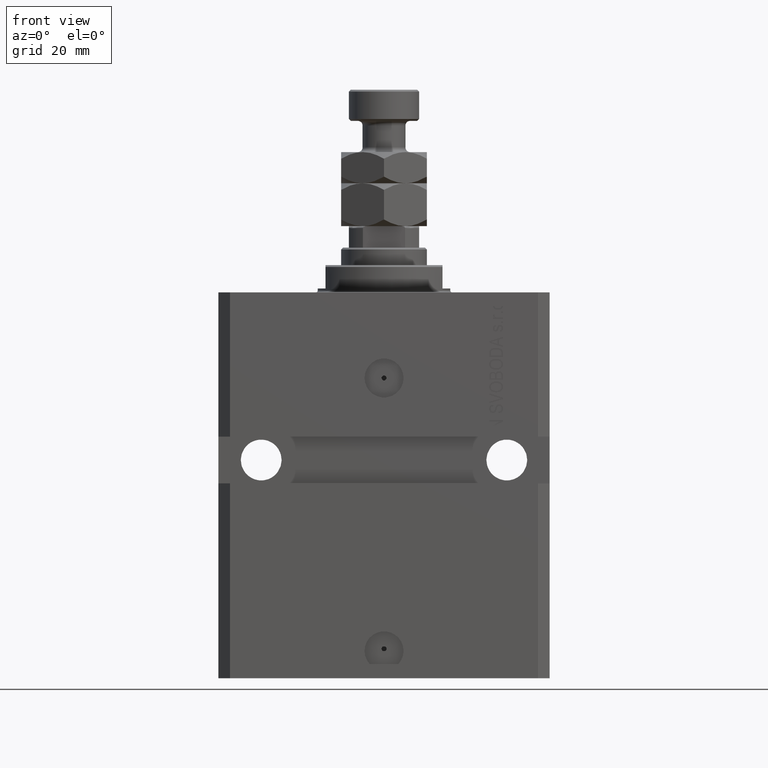
[diagram: clean part render]
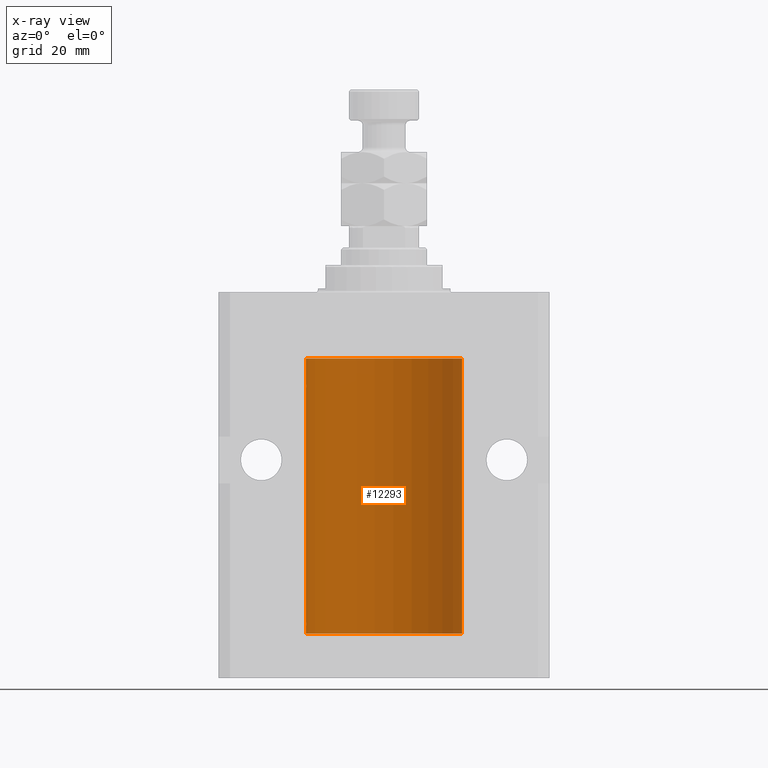
[diagram: x-ray — body ghosted, one internal face saturated and labeled with its STEP entity id]
A machine part, front view, then the same camera in x-ray: the body is ghosted and one INTERNAL B-rep face — a face not visible from any outside direction — is saturated and labeled: STEP entity #12293.
In plain terms, the highlighted cylindrical surface (partial cylindrical patch) has radius 20 mm, axis along (0, 0, 1).
Its self-contained STEP definition (entity closure, byte-faithful):
#975 = ORIENTED_EDGE ( 'NONE', *, *, #20685, .F. ) ;
#1133 = EDGE_CURVE ( 'NONE', #7173, #37258, #35256, .T. ) ;
#1388 = ORIENTED_EDGE ( 'NONE', *, *, #42144, .F. ) ;
#1446 = ORIENTED_EDGE ( 'NONE', *, *, #7345, .T. ) ;
#1989 = CIRCLE ( 'NONE', #16340, 20.00000000000000000 ) ;
#3581 = LINE ( 'NONE', #33949, #13955 ) ;
#4023 = B_SPLINE_CURVE_WITH_KNOTS ( 'NONE', 3,
 ( #15011, #40648, #14517, #41391, #6532, #29681, #14268, #21725, #36904, #10784, #29433, #14772 ),
 .UNSPECIFIED., .F., .F.,
 ( 4, 2, 2, 2, 2, 4 ),
 ( 1.567752838007446890E-18, 0.0002442693137305179934, 0.0004885386274610343605, 0.0009770772549220964765, 0.001465615882383158484, 0.001954154509844220709 ),
 .UNSPECIFIED. ) ;
#4352 = DIRECTION ( 'NONE',  ( 0.000000000000000000, 0.000000000000000000, 1.000000000000000000 ) ) ;
#5596 = CARTESIAN_POINT ( 'NONE',  ( -19.99253506710754991, 0.5587120480776751608, -24.32511620830248589 ) ) ;
#5665 = EDGE_CURVE ( 'NONE', #24873, #17473, #8256, .T. ) ;
#6084 = CARTESIAN_POINT ( 'NONE',  ( -20.00000000000010303, 3.580159278407742946E-13, -24.62500000000332889 ) ) ;
#6430 = CARTESIAN_POINT ( 'NONE',  ( 20.00000000000000000, 0.000000000000000000, -17.00000000000000000 ) ) ;
#6532 = CARTESIAN_POINT ( 'NONE',  ( -19.99638934703457238, 0.3843678041337643680, -84.50046362978100944 ) ) ;
#6729 = VECTOR ( 'NONE', #34881, 1000.000000000000000 ) ;
#7138 = LINE ( 'NONE', #45724, #48583 ) ;
#7173 = VERTEX_POINT ( 'NONE', #14865 ) ;
#7345 = EDGE_CURVE ( 'NONE', #40983, #17473, #1989, .T. ) ;
#7437 = EDGE_CURVE ( 'NONE', #7173, #40983, #3581, .T. ) ;
#7601 = CARTESIAN_POINT ( 'NONE',  ( 0.000000000000000000, 0.000000000000000000, -87.59999999999999432 ) ) ;
#7869 = CARTESIAN_POINT ( 'NONE',  ( -20.00000000000010303, 3.580159278407742946E-13, -24.62500000000332889 ) ) ;
#8256 = LINE ( 'NONE', #49110, #6729 ) ;
#9090 = CARTESIAN_POINT ( 'NONE',  ( -19.99023018003212471, 0.6250578794725500931, -24.16284809704970371 ) ) ;
#10000 = B_SPLINE_CURVE_WITH_KNOTS ( 'NONE', 3,
 ( #25021, #20791, #35717, #40208, #35959, #47920, #43695, #9090, #5596, #43940, #17062, #6084 ),
 .UNSPECIFIED., .F., .F.,
 ( 4, 2, 2, 2, 2, 4 ),
 ( 5.848927291235706941E-19, 0.0002442693137305304075, 0.0004885386274610601645, 0.0009770772549221123059, 0.001465615882383164339, 0.001954154509844215938 ),
 .UNSPECIFIED. ) ;
#10372 = DIRECTION ( 'NONE',  ( 1.000000000000000000, 0.000000000000000000, 0.000000000000000000 ) ) ;
#10784 = CARTESIAN_POINT ( 'NONE',  ( -19.99769349528941476, 0.3253804398728742386, -85.55855820727678918 ) ) ;
#11520 = EDGE_CURVE ( 'NONE', #24873, #42152, #10000, .T. ) ;
#12293 = ADVANCED_FACE ( 'NONE', ( #47958 ), #14118, .F. ) ;
#13955 = VECTOR ( 'NONE', #49142, 1000.000000000000000 ) ;
#14118 = CYLINDRICAL_SURFACE ( 'NONE', #31371, 20.00000000000000000 ) ;
#14268 = CARTESIAN_POINT ( 'NONE',  ( -19.99023380173166231, 0.6249420416828441738, -84.83670793056393222 ) ) ;
#14517 = CARTESIAN_POINT ( 'NONE',  ( -19.99947377218718003, 0.1636439183262789754, -84.39126364004651748 ) ) ;
#14772 = CARTESIAN_POINT ( 'NONE',  ( -20.00000000000010303, 3.580159290815452135E-13, -85.62500000000333955 ) ) ;
#14865 = CARTESIAN_POINT ( 'NONE',  ( 20.00000000000000000, 0.000000000000000000, -87.59999999999999432 ) ) ;
#15011 = CARTESIAN_POINT ( 'NONE',  ( -20.00000000000000000, -1.202273555767702887E-14, -84.37500000000000000 ) ) ;
#16340 = AXIS2_PLACEMENT_3D ( 'NONE', #28729, #44174, #33445 ) ;
#17062 = CARTESIAN_POINT ( 'NONE',  ( -20.00000000000000000, 0.1631688615953320320, -24.62499999999985434 ) ) ;
#17227 = DIRECTION ( 'NONE',  ( -0.000000000000000000, -0.000000000000000000, 1.000000000000000000 ) ) ;
#17233 = VECTOR ( 'NONE', #17227, 1000.000000000000000 ) ;
#17473 = VERTEX_POINT ( 'NONE', #48562 ) ;
#20186 = EDGE_CURVE ( 'NONE', #20786, #34677, #4023, .T. ) ;
#20685 = EDGE_CURVE ( 'NONE', #20786, #42152, #44358, .T. ) ;
#20786 = VERTEX_POINT ( 'NONE', #37625 ) ;
#20791 = CARTESIAN_POINT ( 'NONE',  ( -19.99999999999999645, 0.08259581631026780002, -23.37500000000000000 ) ) ;
#20874 = EDGE_LOOP ( 'NONE', ( #1388, #22403, #38447, #1446, #24867, #46916, #975, #46988 ) ) ;
#21725 = CARTESIAN_POINT ( 'NONE',  ( -19.99023018003212471, 0.6250578794725514253, -85.16284809704970371 ) ) ;
#22403 = ORIENTED_EDGE ( 'NONE', *, *, #1133, .F. ) ;
#23965 = CARTESIAN_POINT ( 'NONE',  ( -20.00000000000000000, -2.867584836844214272E-15, -23.37500000000000000 ) ) ;
#24867 = ORIENTED_EDGE ( 'NONE', *, *, #5665, .F. ) ;
#24873 = VERTEX_POINT ( 'NONE', #23965 ) ;
#25021 = CARTESIAN_POINT ( 'NONE',  ( -20.00000000000000000, -2.867584836844214272E-15, -23.37500000000000000 ) ) ;
#28535 = DIRECTION ( 'NONE',  ( -0.000000000000000000, -0.000000000000000000, 1.000000000000000000 ) ) ;
#28729 = CARTESIAN_POINT ( 'NONE',  ( 0.000000000000000000, 0.000000000000000000, -17.00000000000000000 ) ) ;
#29433 = CARTESIAN_POINT ( 'NONE',  ( -20.00000000000000000, 0.1631688615953339749, -85.62499999999984368 ) ) ;
#29681 = CARTESIAN_POINT ( 'NONE',  ( -19.99256581701872193, 0.5573276956901989099, -84.67348565770950586 ) ) ;
#31371 = AXIS2_PLACEMENT_3D ( 'NONE', #47465, #28535, #10372 ) ;
#33445 = DIRECTION ( 'NONE',  ( 1.000000000000000000, 0.000000000000000000, 0.000000000000000000 ) ) ;
#33949 = CARTESIAN_POINT ( 'NONE',  ( 20.00000000000000000, 0.000000000000000000, -87.59999999999999432 ) ) ;
#34013 = DIRECTION ( 'NONE',  ( -0.000000000000000000, -0.000000000000000000, 1.000000000000000000 ) ) ;
#34225 = DIRECTION ( 'NONE',  ( 1.000000000000000000, 0.000000000000000000, 0.000000000000000000 ) ) ;
#34677 = VERTEX_POINT ( 'NONE', #42132 ) ;
#34881 = DIRECTION ( 'NONE',  ( -0.000000000000000000, -0.000000000000000000, 1.000000000000000000 ) ) ;
#35256 = CIRCLE ( 'NONE', #47993, 20.00000000000000000 ) ;
#35717 = CARTESIAN_POINT ( 'NONE',  ( -19.99947377218718714, 0.1636439183262877461, -23.39126364004656011 ) ) ;
#35959 = CARTESIAN_POINT ( 'NONE',  ( -19.99638934703457593, 0.3843678041337688644, -23.50046362978100944 ) ) ;
#36904 = CARTESIAN_POINT ( 'NONE',  ( -19.99253506710754991, 0.5587120480776802678, -85.32511620830248944 ) ) ;
#36988 = CARTESIAN_POINT ( 'NONE',  ( -20.00000000000000000, 2.449293598294706513E-15, -87.59999999999999432 ) ) ;
#37258 = VERTEX_POINT ( 'NONE', #36988 ) ;
#37625 = CARTESIAN_POINT ( 'NONE',  ( -20.00000000000000000, -1.202273555767702887E-14, -84.37500000000000000 ) ) ;
#38447 = ORIENTED_EDGE ( 'NONE', *, *, #7437, .T. ) ;
#40208 = CARTESIAN_POINT ( 'NONE',  ( -19.99766197842594906, 0.3150331617867667688, -23.45402070102505476 ) ) ;
#40648 = CARTESIAN_POINT ( 'NONE',  ( -19.99999999999999645, 0.08259581631026056969, -84.37500000000001421 ) ) ;
#40983 = VERTEX_POINT ( 'NONE', #6430 ) ;
#41391 = CARTESIAN_POINT ( 'NONE',  ( -19.99766197842594906, 0.3150331617867594969, -84.45402070102504410 ) ) ;
#42132 = CARTESIAN_POINT ( 'NONE',  ( -20.00000000000010303, 3.580159290815452135E-13, -85.62500000000333955 ) ) ;
#42144 = EDGE_CURVE ( 'NONE', #37258, #34677, #7138, .T. ) ;
#42152 = VERTEX_POINT ( 'NONE', #7869 ) ;
#43695 = CARTESIAN_POINT ( 'NONE',  ( -19.99023380173166231, 0.6249420416828462832, -23.83670793056396064 ) ) ;
#43940 = CARTESIAN_POINT ( 'NONE',  ( -19.99769349528941120, 0.3253804398728645242, -24.55855820727680339 ) ) ;
#44174 = DIRECTION ( 'NONE',  ( 0.000000000000000000, 0.000000000000000000, 1.000000000000000000 ) ) ;
#44358 = LINE ( 'NONE', #48343, #17233 ) ;
#45724 = CARTESIAN_POINT ( 'NONE',  ( -20.00000000000000000, 2.449293598294706513E-15, -87.59999999999999432 ) ) ;
#46916 = ORIENTED_EDGE ( 'NONE', *, *, #11520, .T. ) ;
#46988 = ORIENTED_EDGE ( 'NONE', *, *, #20186, .T. ) ;
#47465 = CARTESIAN_POINT ( 'NONE',  ( 0.000000000000000000, 0.000000000000000000, -87.59999999999999432 ) ) ;
#47920 = CARTESIAN_POINT ( 'NONE',  ( -19.99256581701871482, 0.5573276956902001311, -23.67348565770948809 ) ) ;
#47958 = FACE_OUTER_BOUND ( 'NONE', #20874, .T. ) ;
#47993 = AXIS2_PLACEMENT_3D ( 'NONE', #7601, #4352, #34225 ) ;
#48343 = CARTESIAN_POINT ( 'NONE',  ( -20.00000000000000000, 2.449293598294706513E-15, -87.59999999999999432 ) ) ;
#48562 = CARTESIAN_POINT ( 'NONE',  ( -20.00000000000000000, 2.449293598294706513E-15, -17.00000000000000000 ) ) ;
#48583 = VECTOR ( 'NONE', #34013, 1000.000000000000000 ) ;
#49110 = CARTESIAN_POINT ( 'NONE',  ( -20.00000000000000000, 2.449293598294706513E-15, -87.59999999999999432 ) ) ;
#49142 = DIRECTION ( 'NONE',  ( -0.000000000000000000, -0.000000000000000000, 1.000000000000000000 ) ) ;